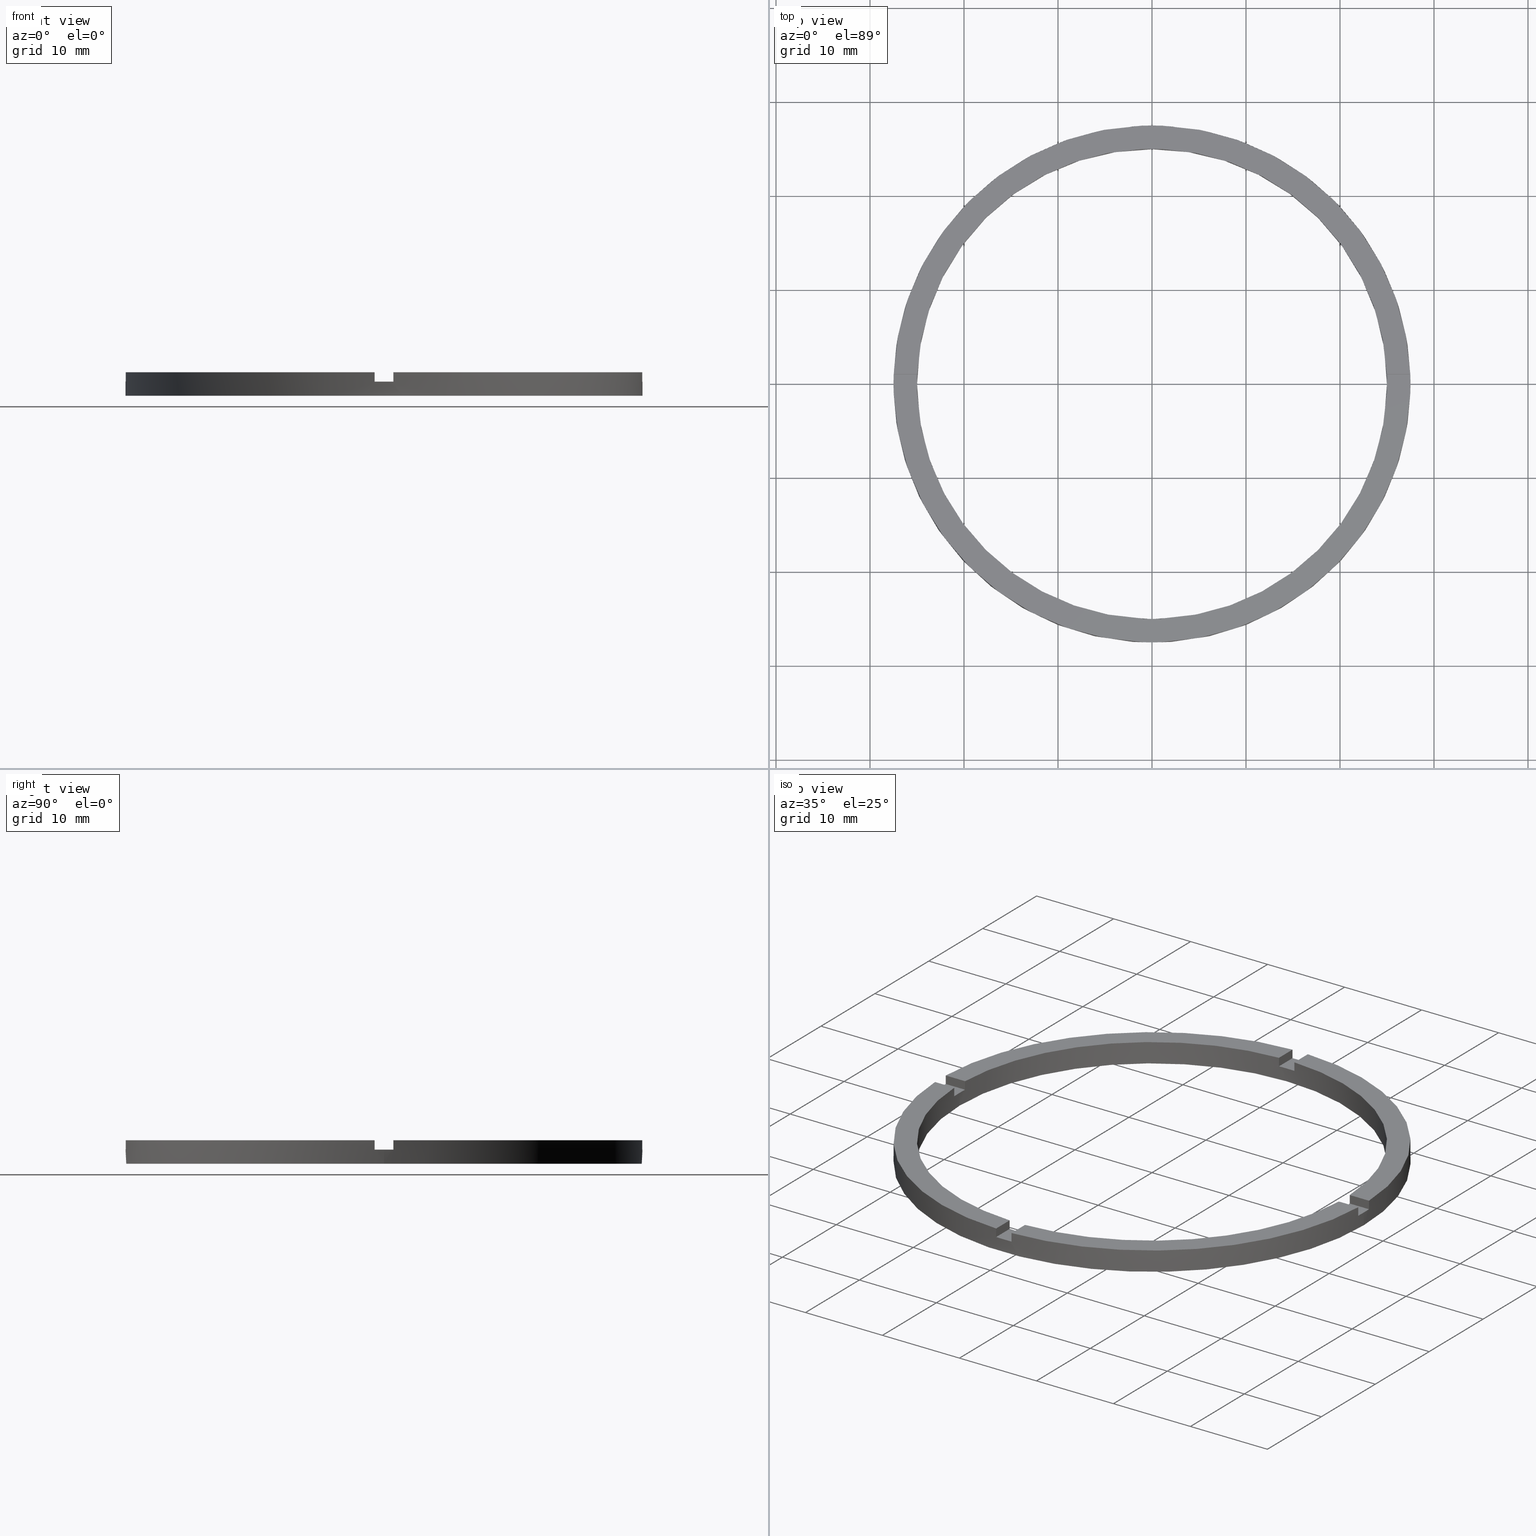
[diagram: canonical four-view strip — front | top / right | iso, engineering-drawing reading convention]
A machine part, canonical four-view strip (front | top / right | iso — engineering-drawing reading convention). The complete STEP part file that produces these views, byte-faithful:
ISO-10303-21;
HEADER;
FILE_DESCRIPTION (( 'STEP AP203' ),
    '1' );
FILE_NAME ('514114.step',
    '2024-12-26T02:38:51',
    ( 'MSI' ),
    ( '' ),
    'SwSTEP 2.0',
    'SolidWorks 2020',
    '' );
FILE_SCHEMA (( 'CONFIG_CONTROL_DESIGN' ));
ENDSEC;

DATA;
#1 = CARTESIAN_POINT ( 'NONE',  ( 0.9999999999998389066, -17.50000000000018119, 1.500000000000000000 ) ) ;
#2 = LINE ( 'NONE', #201, #272 ) ;
#3 = DIRECTION ( 'NONE',  ( 1.000000000000000000, 0.000000000000000000, 0.000000000000000000 ) ) ;
#4 = CYLINDRICAL_SURFACE ( 'NONE', #735, 27.50000000000000000 ) ;
#5 = LINE ( 'NONE', #133, #276 ) ;
#6 = EDGE_CURVE ( 'NONE', #117, #188, #278, .T. ) ;
#7 = LINE ( 'NONE', #370, #289 ) ;
#8 = CARTESIAN_POINT ( 'NONE',  ( -1.000000000000026423, 27.48181216732259102, 1.500000000000000000 ) ) ;
#9 = DIRECTION ( 'NONE',  ( 1.000000000000000000, 0.000000000000000000, 0.000000000000000000 ) ) ;
#10 = FACE_OUTER_BOUND ( 'NONE', #608, .T. ) ;
#11 = EDGE_CURVE ( 'NONE', #80, #614, #544, .T. ) ;
#12 = VECTOR ( 'NONE', #169, 1000.000000000000000 ) ;
#13 = CARTESIAN_POINT ( 'NONE',  ( 0.000000000000000000, 0.000000000000000000, 1.500000000000000000 ) ) ;
#14 = VECTOR ( 'NONE', #762, 1000.000000000000000 ) ;
#15 = LINE ( 'NONE', #671, #20 ) ;
#16 = LINE ( 'NONE', #481, #541 ) ;
#17 = EDGE_CURVE ( 'NONE', #655, #91, #530, .T. ) ;
#18 = FACE_OUTER_BOUND ( 'NONE', #447, .T. ) ;
#19 = EDGE_CURVE ( 'NONE', #359, #665, #283, .T. ) ;
#20 = VECTOR ( 'NONE', #718, 1000.000000000000000 ) ;
#21 = CARTESIAN_POINT ( 'NONE',  ( 0.000000000000000000, 0.000000000000000000, 0.000000000000000000 ) ) ;
#22 = FACE_OUTER_BOUND ( 'NONE', #265, .T. ) ;
#23 = FACE_OUTER_BOUND ( 'NONE', #639, .T. ) ;
#24 = LINE ( 'NONE', #145, #34 ) ;
#25 = AXIS2_PLACEMENT_3D ( 'NONE', #517, #288, #48 ) ;
#26 = LINE ( 'NONE', #185, #553 ) ;
#27 = DIRECTION ( 'NONE',  ( -1.301042606982605567E-16, 1.000000000000000000, 0.000000000000000000 ) ) ;
#28 = CIRCLE ( 'NONE', #460, 25.00000000000000000 ) ;
#29 = FACE_OUTER_BOUND ( 'NONE', #150, .T. ) ;
#30 = CIRCLE ( 'NONE', #533, 25.00000000000000000 ) ;
#31 = FACE_OUTER_BOUND ( 'NONE', #719, .T. ) ;
#32 = APPROVAL ( #539, 'δָ��' ) ;
#33 = CARTESIAN_POINT ( 'NONE',  ( -1.000000000000160316, -24.97999199359358968, 1.500000000000000000 ) ) ;
#34 = VECTOR ( 'NONE', #734, 1000.000000000000000 ) ;
#35 = DIRECTION ( 'NONE',  ( 1.000000000000000000, 1.734723475976807341E-16, -0.000000000000000000 ) ) ;
#36 = AXIS2_PLACEMENT_3D ( 'NONE', #65, #618, #9 ) ;
#37 = CARTESIAN_POINT ( 'NONE',  ( 0.9999999999999735767, 17.50000000000000000, 1.500000000000000000 ) ) ;
#38 = CARTESIAN_POINT ( 'NONE',  ( 0.000000000000000000, 0.000000000000000000, 2.500000000000000000 ) ) ;
#39 = APPLICATION_CONTEXT ( 'configuration controlled 3d designs of mechanical parts and assemblies' ) ;
#40 = EDGE_CURVE ( 'NONE', #783, #346, #15, .T. ) ;
#41 = CARTESIAN_POINT ( 'NONE',  ( 0.000000000000000000, 0.000000000000000000, 0.000000000000000000 ) ) ;
#42 = ADVANCED_FACE ( 'NONE', ( #18 ), #170, .T. ) ;
#43 = CARTESIAN_POINT ( 'NONE',  ( 0.000000000000000000, 0.000000000000000000, 1.500000000000000000 ) ) ;
#44 = AXIS2_PLACEMENT_3D ( 'NONE', #21, #736, #739 ) ;
#45 = DIRECTION ( 'NONE',  ( 0.000000000000000000, 0.000000000000000000, 1.000000000000000000 ) ) ;
#46 = DIRECTION ( 'NONE',  ( 0.000000000000000000, 0.000000000000000000, 1.000000000000000000 ) ) ;
#47 = CARTESIAN_POINT ( 'NONE',  ( 27.48181216732258392, -1.000000000000157208, 2.500000000000000000 ) ) ;
#48 = DIRECTION ( 'NONE',  ( 1.000000000000000000, 0.000000000000000000, -0.000000000000000000 ) ) ;
#49 = ADVANCED_FACE ( 'NONE', ( #284 ), #475, .F. ) ;
#50 = DIRECTION ( 'NONE',  ( 1.000000000000000000, 0.000000000000000000, 0.000000000000000000 ) ) ;
#51 = PLANE ( 'NONE',  #216 ) ;
#52 = DIRECTION ( 'NONE',  ( -1.301042606982605567E-16, 1.000000000000000000, -0.000000000000000000 ) ) ;
#53 = CARTESIAN_POINT ( 'NONE',  ( -1.000000000000026423, 27.48181216732259102, 2.500000000000000000 ) ) ;
#54 = DIRECTION ( 'NONE',  ( 1.000000000000000000, 1.734723475976807341E-16, 0.000000000000000000 ) ) ;
#55 = EDGE_CURVE ( 'NONE', #596, #158, #518, .T. ) ;
#56 = PERSON_AND_ORGANIZATION_ROLE ( 'creator' ) ;
#57 = EDGE_CURVE ( 'NONE', #654, #403, #773, .T. ) ;
#58 = DIRECTION ( 'NONE',  ( 0.000000000000000000, 0.000000000000000000, 1.000000000000000000 ) ) ;
#59 = DIRECTION ( 'NONE',  ( 1.000000000000000000, 0.000000000000000000, 0.000000000000000000 ) ) ;
#60 = CARTESIAN_POINT ( 'NONE',  ( -17.50000000000018474, -1.000000000000025091, 1.500000000000000000 ) ) ;
#61 = ORIENTED_EDGE ( 'NONE', *, *, #328, .F. ) ;
#62 = PRODUCT_DEFINITION ( 'δ֪', '', #457, #122 ) ;
#63 = DIRECTION ( 'NONE',  ( -0.000000000000000000, -0.000000000000000000, -1.000000000000000000 ) ) ;
#64 = DIRECTION ( 'NONE',  ( 1.000000000000000000, 1.734723475976807341E-16, -0.000000000000000000 ) ) ;
#65 = CARTESIAN_POINT ( 'NONE',  ( 0.000000000000000000, 0.000000000000000000, 2.500000000000000000 ) ) ;
#66 = DATE_AND_TIME ( #613, #336 ) ;
#67 = ORIENTED_EDGE ( 'NONE', *, *, #17, .F. ) ;
#68 = EDGE_CURVE ( 'NONE', #596, #601, #16, .T. ) ;
#69 = COORDINATED_UNIVERSAL_TIME_OFFSET ( 8, 0, .AHEAD. ) ;
#70 = ORIENTED_EDGE ( 'NONE', *, *, #754, .F. ) ;
#71 = PLANE ( 'NONE',  #570 ) ;
#72 = ORIENTED_EDGE ( 'NONE', *, *, #68, .F. ) ;
#73 = ORIENTED_EDGE ( 'NONE', *, *, #202, .T. ) ;
#74 = VERTEX_POINT ( 'NONE', #732 ) ;
#75 = CARTESIAN_POINT ( 'NONE',  ( 17.49999999999999645, -1.000000000000157430, 1.500000000000000000 ) ) ;
#76 = ORIENTED_EDGE ( 'NONE', *, *, #425, .F. ) ;
#77 = ORIENTED_EDGE ( 'NONE', *, *, #657, .T. ) ;
#78 = ORIENTED_EDGE ( 'NONE', *, *, #132, .F. ) ;
#79 = PERSON_AND_ORGANIZATION ( #693, #591 ) ;
#80 = VERTEX_POINT ( 'NONE', #53 ) ;
#81 = ORIENTED_EDGE ( 'NONE', *, *, #57, .T. ) ;
#82 = EDGE_LOOP ( 'NONE', ( #540, #630, #270, #111 ) ) ;
#83 = DIRECTION ( 'NONE',  ( 0.000000000000000000, 0.000000000000000000, 1.000000000000000000 ) ) ;
#84 = DIRECTION ( 'NONE',  ( 0.000000000000000000, 0.000000000000000000, 1.000000000000000000 ) ) ;
#85 = ORIENTED_EDGE ( 'NONE', *, *, #40, .F. ) ;
#86 = ORIENTED_EDGE ( 'NONE', *, *, #161, .T. ) ;
#87 = EDGE_CURVE ( 'NONE', #662, #606, #7, .T. ) ;
#88 = ORIENTED_EDGE ( 'NONE', *, *, #55, .T. ) ;
#89 = ORIENTED_EDGE ( 'NONE', *, *, #388, .T. ) ;
#90 = ORIENTED_EDGE ( 'NONE', *, *, #600, .T. ) ;
#91 = VERTEX_POINT ( 'NONE', #432 ) ;
#92 = ORIENTED_EDGE ( 'NONE', *, *, #307, .T. ) ;
#93 = EDGE_LOOP ( 'NONE', ( #98, #386, #193, #337, #97, #637, #85, #356, #110, #89, #73, #67 ) ) ;
#94 = EDGE_LOOP ( 'NONE', ( #454, #339 ) ) ;
#95 = CARTESIAN_POINT ( 'NONE',  ( 0.9999999999999735767, 27.48181216732259102, 2.500000000000000000 ) ) ;
#96 = CARTESIAN_POINT ( 'NONE',  ( -25.00000000000000000, 0.000000000000000000, 1.500000000000000000 ) ) ;
#97 = ORIENTED_EDGE ( 'NONE', *, *, #462, .F. ) ;
#98 = ORIENTED_EDGE ( 'NONE', *, *, #410, .F. ) ;
#99 = AXIS2_PLACEMENT_3D ( 'NONE', #37, #220, #285 ) ;
#100 = EDGE_LOOP ( 'NONE', ( #387, #380, #131, #151, #661, #531 ) ) ;
#101 = ORIENTED_EDGE ( 'NONE', *, *, #87, .F. ) ;
#102 = ORIENTED_EDGE ( 'NONE', *, *, #612, .T. ) ;
#103 = CARTESIAN_POINT ( 'NONE',  ( -1.000000000000026423, 17.50000000000000000, 1.500000000000000000 ) ) ;
#104 = VERTEX_POINT ( 'NONE', #203 ) ;
#105 = ORIENTED_EDGE ( 'NONE', *, *, #727, .T. ) ;
#106 = ORIENTED_EDGE ( 'NONE', *, *, #206, .F. ) ;
#107 = EDGE_LOOP ( 'NONE', ( #416, #148, #72, #644 ) ) ;
#108 = CC_DESIGN_DATE_AND_TIME_ASSIGNMENT ( #448, #357, ( #171 ) ) ;
#109 = VERTEX_POINT ( 'NONE', #123 ) ;
#110 = ORIENTED_EDGE ( 'NONE', *, *, #324, .F. ) ;
#111 = ORIENTED_EDGE ( 'NONE', *, *, #681, .F. ) ;
#112 = DIRECTION ( 'NONE',  ( -0.000000000000000000, -0.000000000000000000, -1.000000000000000000 ) ) ;
#113 = ORIENTED_EDGE ( 'NONE', *, *, #509, .F. ) ;
#114 = EDGE_CURVE ( 'NONE', #74, #669, #535, .T. ) ;
#115 = CARTESIAN_POINT ( 'NONE',  ( 0.000000000000000000, 0.000000000000000000, 2.500000000000000000 ) ) ;
#116 = ORIENTED_EDGE ( 'NONE', *, *, #87, .T. ) ;
#117 = VERTEX_POINT ( 'NONE', #542 ) ;
#118 = ORIENTED_EDGE ( 'NONE', *, *, #469, .F. ) ;
#119 = CARTESIAN_POINT ( 'NONE',  ( -1.000000000000160316, -24.97999199359358968, 2.500000000000000000 ) ) ;
#120 = ORIENTED_EDGE ( 'NONE', *, *, #114, .F. ) ;
#121 = VERTEX_POINT ( 'NONE', #8 ) ;
#122 = DESIGN_CONTEXT ( 'detailed design', #242, 'design' ) ;
#123 = CARTESIAN_POINT ( 'NONE',  ( -1.000000000000160094, -27.48181216732258392, 1.500000000000000000 ) ) ;
#124 = ORIENTED_EDGE ( 'NONE', *, *, #206, .T. ) ;
#125 = DIRECTION ( 'NONE',  ( 0.000000000000000000, 0.000000000000000000, 1.000000000000000000 ) ) ;
#126 = PRODUCT_RELATED_PRODUCT_CATEGORY ( 'detail', '', ( #422 ) ) ;
#127 = ORIENTED_EDGE ( 'NONE', *, *, #307, .F. ) ;
#128 = ADVANCED_FACE ( 'NONE', ( #522 ), #257, .F. ) ;
#129 = PERSON_AND_ORGANIZATION_ROLE ( 'design_owner' ) ;
#130 = ORIENTED_EDGE ( 'NONE', *, *, #778, .T. ) ;
#131 = ORIENTED_EDGE ( 'NONE', *, *, #295, .T. ) ;
#132 = EDGE_CURVE ( 'NONE', #109, #186, #776, .T. ) ;
#133 = CARTESIAN_POINT ( 'NONE',  ( -17.50000000000018474, 0.9999999999999749090, 2.500000000000000000 ) ) ;
#134 = ORIENTED_EDGE ( 'NONE', *, *, #177, .F. ) ;
#135 = CARTESIAN_POINT ( 'NONE',  ( 27.50000000000000000, 3.367778697655221307E-15, 0.000000000000000000 ) ) ;
#136 = ORIENTED_EDGE ( 'NONE', *, *, #625, .F. ) ;
#137 = ORIENTED_EDGE ( 'NONE', *, *, #462, .T. ) ;
#138 = PLANE ( 'NONE',  #342 ) ;
#139 = AXIS2_PLACEMENT_3D ( 'NONE', #43, #222, #347 ) ;
#140 = EDGE_CURVE ( 'NONE', #445, #104, #507, .T. ) ;
#141 = DIRECTION ( 'NONE',  ( 1.301042606982605567E-16, -1.000000000000000000, 0.000000000000000000 ) ) ;
#142 = AXIS2_PLACEMENT_3D ( 'NONE', #1, #482, #27 ) ;
#143 = DIRECTION ( 'NONE',  ( 1.000000000000000000, 0.000000000000000000, 0.000000000000000000 ) ) ;
#144 = VERTEX_POINT ( 'NONE', #680 ) ;
#145 = CARTESIAN_POINT ( 'NONE',  ( 17.49999999999999645, 0.9999999999998425704, 1.500000000000000000 ) ) ;
#146 = EDGE_CURVE ( 'NONE', #403, #654, #264, .T. ) ;
#147 = CARTESIAN_POINT ( 'NONE',  ( 0.000000000000000000, 0.000000000000000000, 2.500000000000000000 ) ) ;
#148 = ORIENTED_EDGE ( 'NONE', *, *, #227, .F. ) ;
#149 = ORIENTED_EDGE ( 'NONE', *, *, #11, .F. ) ;
#150 = EDGE_LOOP ( 'NONE', ( #527, #105, #382, #263 ) ) ;
#151 = ORIENTED_EDGE ( 'NONE', *, *, #582, .F. ) ;
#152 = AXIS2_PLACEMENT_3D ( 'NONE', #604, #196, #677 ) ;
#153 = CARTESIAN_POINT ( 'NONE',  ( -24.97999199359359679, 0.9999999999999735767, 2.500000000000000000 ) ) ;
#154 = ORIENTED_EDGE ( 'NONE', *, *, #690, .T. ) ;
#155 = DIRECTION ( 'NONE',  ( 0.000000000000000000, 0.000000000000000000, 1.000000000000000000 ) ) ;
#156 = PLANE ( 'NONE',  #212 ) ;
#157 = EDGE_CURVE ( 'NONE', #449, #614, #5, .T. ) ;
#158 = VERTEX_POINT ( 'NONE', #182 ) ;
#159 = DIRECTION ( 'NONE',  ( 0.000000000000000000, 0.000000000000000000, 1.000000000000000000 ) ) ;
#160 = CARTESIAN_POINT ( 'NONE',  ( 25.00000000000000000, 3.061616997868383043E-15, 0.000000000000000000 ) ) ;
#161 = EDGE_CURVE ( 'NONE', #391, #121, #519, .T. ) ;
#162 = ORIENTED_EDGE ( 'NONE', *, *, #670, .T. ) ;
#163 = ORIENTED_EDGE ( 'NONE', *, *, #657, .F. ) ;
#164 = DIRECTION ( 'NONE',  ( -0.000000000000000000, -1.000000000000000000, -0.000000000000000000 ) ) ;
#165 = EDGE_CURVE ( 'NONE', #596, #665, #515, .T. ) ;
#166 = AXIS2_PLACEMENT_3D ( 'NONE', #192, #394, #572 ) ;
#167 = DIRECTION ( 'NONE',  ( 0.000000000000000000, 0.000000000000000000, 1.000000000000000000 ) ) ;
#168 = ORIENTED_EDGE ( 'NONE', *, *, #703, .T. ) ;
#169 = DIRECTION ( 'NONE',  ( -0.000000000000000000, -0.000000000000000000, -1.000000000000000000 ) ) ;
#170 = PLANE ( 'NONE',  #187 ) ;
#171 = SECURITY_CLASSIFICATION ( '', '', #723 ) ;
#172 = PERSON_AND_ORGANIZATION_ROLE ( 'creator' ) ;
#173 = AXIS2_PLACEMENT_3D ( 'NONE', #592, #125, #3 ) ;
#174 = ADVANCED_FACE ( 'NONE', ( #780 ), #492, .F. ) ;
#175 = CARTESIAN_POINT ( 'NONE',  ( -17.50000000000018474, 0.9999999999999749090, 1.500000000000000000 ) ) ;
#176 = APPROVAL_DATE_TIME ( #715, #643 ) ;
#177 = EDGE_CURVE ( 'NONE', #91, #655, #277, .T. ) ;
#178 = MECHANICAL_CONTEXT ( 'NONE', #39, 'mechanical' ) ;
#179 = COORDINATED_UNIVERSAL_TIME_OFFSET ( 8, 0, .AHEAD. ) ;
#180 = CALENDAR_DATE ( 2024, 26, 12 ) ;
#181 = ADVANCED_FACE ( 'NONE', ( #271 ), #210, .T. ) ;
#182 = CARTESIAN_POINT ( 'NONE',  ( 27.48181216732259458, 0.9999999999998430145, 1.500000000000000000 ) ) ;
#183 = CALENDAR_DATE ( 2024, 26, 12 ) ;
#184 = ORIENTED_EDGE ( 'NONE', *, *, #328, .T. ) ;
#185 = CARTESIAN_POINT ( 'NONE',  ( 25.00000000000000000, 3.061616997868383043E-15, 2.500000000000000000 ) ) ;
#186 = VERTEX_POINT ( 'NONE', #664 ) ;
#187 = AXIS2_PLACEMENT_3D ( 'NONE', #232, #308, #350 ) ;
#188 = VERTEX_POINT ( 'NONE', #254 ) ;
#189 = DIRECTION ( 'NONE',  ( -0.000000000000000000, -0.000000000000000000, -1.000000000000000000 ) ) ;
#190 = DIRECTION ( 'NONE',  ( 1.000000000000000000, 0.000000000000000000, 0.000000000000000000 ) ) ;
#191 = LOCAL_TIME ( 10, 38, 51.00000000000000000, #444 ) ;
#192 = CARTESIAN_POINT ( 'NONE',  ( 0.000000000000000000, 0.000000000000000000, 2.500000000000000000 ) ) ;
#193 = ORIENTED_EDGE ( 'NONE', *, *, #764, .F. ) ;
#194 = ORIENTED_EDGE ( 'NONE', *, *, #472, .T. ) ;
#195 = ORIENTED_EDGE ( 'NONE', *, *, #241, .T. ) ;
#196 = DIRECTION ( 'NONE',  ( 0.000000000000000000, 0.000000000000000000, 1.000000000000000000 ) ) ;
#197 = APPROVAL_PERSON_ORGANIZATION ( #461, #643, #547 ) ;
#198 = PRODUCT_DEFINITION_SHAPE ( 'NONE', 'NONE',  #62 ) ;
#199 = APPROVAL_DATE_TIME ( #446, #32 ) ;
#200 = LOCAL_TIME ( 10, 38, 51.00000000000000000, #698 ) ;
#201 = CARTESIAN_POINT ( 'NONE',  ( -1.000000000000026423, 27.48181216732259102, 2.500000000000000000 ) ) ;
#202 = EDGE_CURVE ( 'NONE', #653, #91, #505, .T. ) ;
#203 = CARTESIAN_POINT ( 'NONE',  ( -27.48181216732259102, -1.000000000000026867, 1.500000000000000000 ) ) ;
#204 = COORDINATED_UNIVERSAL_TIME_OFFSET ( 8, 0, .AHEAD. ) ;
#205 = PLANE ( 'NONE',  #142 ) ;
#206 = EDGE_CURVE ( 'NONE', #669, #445, #770, .T. ) ;
#207 = DATE_AND_TIME ( #450, #191 ) ;
#208 = SHAPE_DEFINITION_REPRESENTATION ( #198, #726 ) ;
#209 = CARTESIAN_POINT ( 'NONE',  ( 17.49999999999999645, -1.000000000000157430, 2.500000000000000000 ) ) ;
#210 = PLANE ( 'NONE',  #396 ) ;
#211 = DIRECTION ( 'NONE',  ( 0.000000000000000000, 0.000000000000000000, 1.000000000000000000 ) ) ;
#212 = AXIS2_PLACEMENT_3D ( 'NONE', #281, #704, #471 ) ;
#213 = DIRECTION ( 'NONE',  ( -0.000000000000000000, -0.000000000000000000, -1.000000000000000000 ) ) ;
#214 = CARTESIAN_POINT ( 'NONE',  ( -17.50000000000018474, -1.000000000000025091, 1.500000000000000000 ) ) ;
#215 = CC_DESIGN_PERSON_AND_ORGANIZATION_ASSIGNMENT ( #724, #172, ( #457 ) ) ;
#216 = AXIS2_PLACEMENT_3D ( 'NONE', #60, #238, #54 ) ;
#217 = DIRECTION ( 'NONE',  ( -0.000000000000000000, -0.000000000000000000, -1.000000000000000000 ) ) ;
#218 = CARTESIAN_POINT ( 'NONE',  ( 0.000000000000000000, 0.000000000000000000, 2.500000000000000000 ) ) ;
#219 = EDGE_CURVE ( 'NONE', #669, #614, #258, .T. ) ;
#220 = DIRECTION ( 'NONE',  ( 1.000000000000000000, -0.000000000000000000, 0.000000000000000000 ) ) ;
#221 = ADVANCED_FACE ( 'NONE', ( #259 ), #4, .T. ) ;
#222 = DIRECTION ( 'NONE',  ( 0.000000000000000000, 0.000000000000000000, 1.000000000000000000 ) ) ;
#223 = CARTESIAN_POINT ( 'NONE',  ( 0.000000000000000000, 0.000000000000000000, 2.500000000000000000 ) ) ;
#224 = DIRECTION ( 'NONE',  ( 0.000000000000000000, 0.000000000000000000, 1.000000000000000000 ) ) ;
#225 = AXIS2_PLACEMENT_3D ( 'NONE', #558, #565, #551 ) ;
#226 = CARTESIAN_POINT ( 'NONE',  ( -27.50000000000000000, 0.000000000000000000, 0.000000000000000000 ) ) ;
#227 = EDGE_CURVE ( 'NONE', #601, #359, #523, .T. ) ;
#228 = VECTOR ( 'NONE', #112, 1000.000000000000000 ) ;
#229 = VECTOR ( 'NONE', #164, 1000.000000000000000 ) ;
#230 = FACE_BOUND ( 'NONE', #94, .T. ) ;
#231 = FACE_OUTER_BOUND ( 'NONE', #648, .T. ) ;
#232 = CARTESIAN_POINT ( 'NONE',  ( 0.000000000000000000, 0.000000000000000000, 1.500000000000000000 ) ) ;
#233 = VECTOR ( 'NONE', #341, 1000.000000000000000 ) ;
#234 = APPLICATION_PROTOCOL_DEFINITION ( 'international standard', 'config_control_design', 1994, #242 ) ;
#235 = LINE ( 'NONE', #280, #502 ) ;
#236 = VECTOR ( 'NONE', #52, 1000.000000000000000 ) ;
#237 = LINE ( 'NONE', #746, #228 ) ;
#238 = DIRECTION ( 'NONE',  ( 1.734723475976807341E-16, -1.000000000000000000, 0.000000000000000000 ) ) ;
#239 = ADVANCED_FACE ( 'NONE', ( #10 ), #463, .T. ) ;
#240 = LINE ( 'NONE', #508, #759 ) ;
#241 = EDGE_CURVE ( 'NONE', #623, #186, #782, .T. ) ;
#242 = APPLICATION_CONTEXT ( 'configuration controlled 3d designs of mechanical parts and assemblies' ) ;
#243 = FACE_OUTER_BOUND ( 'NONE', #100, .T. ) ;
#244 = DIRECTION ( 'NONE',  ( 1.000000000000000000, 4.336808689942018352E-17, 0.000000000000000000 ) ) ;
#245 = DIRECTION ( 'NONE',  ( -0.000000000000000000, -0.000000000000000000, -1.000000000000000000 ) ) ;
#246 = VECTOR ( 'NONE', #712, 1000.000000000000000 ) ;
#247 = CC_DESIGN_PERSON_AND_ORGANIZATION_ASSIGNMENT ( #701, #594, ( #171 ) ) ;
#248 = VECTOR ( 'NONE', #297, 1000.000000000000000 ) ;
#249 = DIRECTION ( 'NONE',  ( 1.000000000000000000, 0.000000000000000000, 0.000000000000000000 ) ) ;
#250 = DIRECTION ( 'NONE',  ( 1.000000000000000000, 0.000000000000000000, 0.000000000000000000 ) ) ;
#251 = VECTOR ( 'NONE', #569, 1000.000000000000000 ) ;
#252 = FACE_OUTER_BOUND ( 'NONE', #360, .T. ) ;
#253 = LINE ( 'NONE', #590, #484 ) ;
#254 = CARTESIAN_POINT ( 'NONE',  ( 25.00000000000000000, 3.061616997868383043E-15, 1.500000000000000000 ) ) ;
#255 = LINE ( 'NONE', #418, #233 ) ;
#256 = CARTESIAN_POINT ( 'NONE',  ( 0.000000000000000000, 0.000000000000000000, 1.500000000000000000 ) ) ;
#257 = CYLINDRICAL_SURFACE ( 'NONE', #574, 25.00000000000000000 ) ;
#258 = LINE ( 'NONE', #564, #14 ) ;
#259 = FACE_OUTER_BOUND ( 'NONE', #345, .T. ) ;
#260 = VERTEX_POINT ( 'NONE', #555 ) ;
#261 = CARTESIAN_POINT ( 'NONE',  ( 0.000000000000000000, 0.000000000000000000, 2.500000000000000000 ) ) ;
#262 = CARTESIAN_POINT ( 'NONE',  ( -1.000000000000161204, -17.50000000000018119, 1.500000000000000000 ) ) ;
#263 = ORIENTED_EDGE ( 'NONE', *, *, #241, .F. ) ;
#264 = CIRCLE ( 'NONE', #692, 27.50000000000000000 ) ;
#265 = EDGE_LOOP ( 'NONE', ( #124, #621, #395, #163, #646, #510 ) ) ;
#266 = CARTESIAN_POINT ( 'NONE',  ( 0.000000000000000000, 0.000000000000000000, 2.500000000000000000 ) ) ;
#267 = CARTESIAN_POINT ( 'NONE',  ( 0.000000000000000000, 0.000000000000000000, 2.500000000000000000 ) ) ;
#268 = PLANE ( 'NONE',  #686 ) ;
#269 = EDGE_CURVE ( 'NONE', #80, #121, #2, .T. ) ;
#270 = ORIENTED_EDGE ( 'NONE', *, *, #583, .T. ) ;
#271 = FACE_OUTER_BOUND ( 'NONE', #619, .T. ) ;
#272 = VECTOR ( 'NONE', #392, 1000.000000000000000 ) ;
#273 = VECTOR ( 'NONE', #568, 1000.000000000000000 ) ;
#274 = DIRECTION ( 'NONE',  ( -0.000000000000000000, -0.000000000000000000, -1.000000000000000000 ) ) ;
#275 =( NAMED_UNIT ( * ) SI_UNIT ( $, .STERADIAN. ) SOLID_ANGLE_UNIT ( ) );
#276 = VECTOR ( 'NONE', #687, 1000.000000000000000 ) ;
#277 = CIRCLE ( 'NONE', #44, 25.00000000000000000 ) ;
#278 = CIRCLE ( 'NONE', #436, 25.00000000000000000 ) ;
#279 = EDGE_CURVE ( 'NONE', #144, #368, #524, .T. ) ;
#280 = CARTESIAN_POINT ( 'NONE',  ( -1.000000000000160316, -24.97999199359358968, 2.500000000000000000 ) ) ;
#281 = CARTESIAN_POINT ( 'NONE',  ( 0.000000000000000000, 0.000000000000000000, 1.500000000000000000 ) ) ;
#282 = CYLINDRICAL_SURFACE ( 'NONE', #772, 25.00000000000000000 ) ;
#283 = LINE ( 'NONE', #292, #537 ) ;
#284 = FACE_OUTER_BOUND ( 'NONE', #679, .T. ) ;
#285 = DIRECTION ( 'NONE',  ( 0.000000000000000000, 0.000000000000000000, -1.000000000000000000 ) ) ;
#286 = AXIS2_PLACEMENT_3D ( 'NONE', #658, #401, #250 ) ;
#287 = VECTOR ( 'NONE', #189, 1000.000000000000000 ) ;
#288 = DIRECTION ( 'NONE',  ( 0.000000000000000000, 0.000000000000000000, 1.000000000000000000 ) ) ;
#289 = VECTOR ( 'NONE', #64, 1000.000000000000000 ) ;
#290 = DIRECTION ( 'NONE',  ( -1.000000000000000000, 0.000000000000000000, 0.000000000000000000 ) ) ;
#291 = VECTOR ( 'NONE', #274, 1000.000000000000000 ) ;
#292 = CARTESIAN_POINT ( 'NONE',  ( 0.9999999999999735767, 17.50000000000000000, 2.500000000000000000 ) ) ;
#293 = ADVANCED_FACE ( 'NONE', ( #534 ), #282, .F. ) ;
#294 = CIRCLE ( 'NONE', #485, 25.00000000000000000 ) ;
#295 = EDGE_CURVE ( 'NONE', #158, #629, #24, .T. ) ;
#296 = CIRCLE ( 'NONE', #286, 27.50000000000000000 ) ;
#297 = DIRECTION ( 'NONE',  ( 0.000000000000000000, 0.000000000000000000, 1.000000000000000000 ) ) ;
#298 = VECTOR ( 'NONE', #559, 1000.000000000000000 ) ;
#299 = LINE ( 'NONE', #311, #309 ) ;
#300 = DIRECTION ( 'NONE',  ( 0.000000000000000000, 0.000000000000000000, 1.000000000000000000 ) ) ;
#301 = CIRCLE ( 'NONE', #36, 25.00000000000000000 ) ;
#302 = AXIS2_PLACEMENT_3D ( 'NONE', #609, #321, #440 ) ;
#303 = CIRCLE ( 'NONE', #173, 27.50000000000000000 ) ;
#304 =( LENGTH_UNIT ( ) NAMED_UNIT ( * ) SI_UNIT ( .MILLI., .METRE. ) );
#305 = VECTOR ( 'NONE', #213, 1000.000000000000000 ) ;
#306 = LINE ( 'NONE', #610, #291 ) ;
#307 = EDGE_CURVE ( 'NONE', #611, #710, #294, .T. ) ;
#308 = DIRECTION ( 'NONE',  ( -0.000000000000000000, 0.000000000000000000, 1.000000000000000000 ) ) ;
#309 = VECTOR ( 'NONE', #167, 1000.000000000000000 ) ;
#310 = PERSON_AND_ORGANIZATION_ROLE ( 'design_supplier' ) ;
#311 = CARTESIAN_POINT ( 'NONE',  ( -24.97999199359359679, 0.9999999999999735767, 2.500000000000000000 ) ) ;
#312 = APPROVAL_STATUS ( 'not_yet_approved' ) ;
#313 = ADVANCED_FACE ( 'NONE', ( #552 ), #51, .F. ) ;
#314 = DIRECTION ( 'NONE',  ( 4.336808689942018352E-17, -1.000000000000000000, 0.000000000000000000 ) ) ;
#315 = DIRECTION ( 'NONE',  ( -0.000000000000000000, -0.000000000000000000, -1.000000000000000000 ) ) ;
#316 = AXIS2_PLACEMENT_3D ( 'NONE', #435, #737, #317 ) ;
#317 = DIRECTION ( 'NONE',  ( 1.000000000000000000, 0.000000000000000000, 0.000000000000000000 ) ) ;
#318 = EDGE_CURVE ( 'NONE', #623, #354, #546, .T. ) ;
#319 = CARTESIAN_POINT ( 'NONE',  ( 0.000000000000000000, 0.000000000000000000, 1.500000000000000000 ) ) ;
#320 = CC_DESIGN_APPROVAL ( #348, ( #62 ) ) ;
#321 = DIRECTION ( 'NONE',  ( 0.000000000000000000, 0.000000000000000000, 1.000000000000000000 ) ) ;
#322 = AXIS2_PLACEMENT_3D ( 'NONE', #115, #335, #50 ) ;
#323 = CARTESIAN_POINT ( 'NONE',  ( 0.000000000000000000, 0.000000000000000000, 1.500000000000000000 ) ) ;
#324 = EDGE_CURVE ( 'NONE', #74, #449, #299, .T. ) ;
#325 = DIRECTION ( 'NONE',  ( -1.000000000000000000, -4.336808689942017120E-17, 0.000000000000000000 ) ) ;
#326 = AXIS2_PLACEMENT_3D ( 'NONE', #777, #58, #428 ) ;
#327 = PLANE ( 'NONE',  #520 ) ;
#328 = EDGE_CURVE ( 'NONE', #662, #452, #303, .T. ) ;
#329 = CARTESIAN_POINT ( 'NONE',  ( -27.48181216732259102, 0.9999999999999731326, 2.500000000000000000 ) ) ;
#330 = CARTESIAN_POINT ( 'NONE',  ( -1.000000000000026423, 24.97999199359359679, 2.500000000000000000 ) ) ;
#331 = CARTESIAN_POINT ( 'NONE',  ( 0.000000000000000000, 0.000000000000000000, 2.500000000000000000 ) ) ;
#332 = PERSON_AND_ORGANIZATION ( #693, #591 ) ;
#333 = DIRECTION ( 'NONE',  ( -0.000000000000000000, -1.000000000000000000, -0.000000000000000000 ) ) ;
#334 = ORIENTED_EDGE ( 'NONE', *, *, #11, .T. ) ;
#335 = DIRECTION ( 'NONE',  ( 0.000000000000000000, 0.000000000000000000, 1.000000000000000000 ) ) ;
#336 = LOCAL_TIME ( 10, 38, 51.00000000000000000, #69 ) ;
#337 = ORIENTED_EDGE ( 'NONE', *, *, #227, .T. ) ;
#338 = ORIENTED_EDGE ( 'NONE', *, *, #146, .T. ) ;
#339 = ORIENTED_EDGE ( 'NONE', *, *, #17, .T. ) ;
#340 = ORIENTED_EDGE ( 'NONE', *, *, #279, .F. ) ;
#341 = DIRECTION ( 'NONE',  ( 0.000000000000000000, 1.000000000000000000, 0.000000000000000000 ) ) ;
#342 = AXIS2_PLACEMENT_3D ( 'NONE', #486, #437, #325 ) ;
#343 = ORIENTED_EDGE ( 'NONE', *, *, #600, .F. ) ;
#344 = CARTESIAN_POINT ( 'NONE',  ( 0.9999999999998400169, -27.48181216732259458, 2.500000000000000000 ) ) ;
#345 = EDGE_LOOP ( 'NONE', ( #673, #102, #338, #624, #106, #378, #149, #602, #616, #90, #374, #88 ) ) ;
#346 = VERTEX_POINT ( 'NONE', #521 ) ;
#347 = DIRECTION ( 'NONE',  ( 1.000000000000000000, 0.000000000000000000, 0.000000000000000000 ) ) ;
#348 = APPROVAL ( #312, 'δָ��' ) ;
#349 = ORIENTED_EDGE ( 'NONE', *, *, #417, .T. ) ;
#350 = DIRECTION ( 'NONE',  ( 1.000000000000000000, 0.000000000000000000, 0.000000000000000000 ) ) ;
#351 = ORIENTED_EDGE ( 'NONE', *, *, #731, .T. ) ;
#352 = ORIENTED_EDGE ( 'NONE', *, *, #269, .F. ) ;
#353 = AXIS2_PLACEMENT_3D ( 'NONE', #756, #376, #479 ) ;
#354 = VERTEX_POINT ( 'NONE', #415 ) ;
#355 = EDGE_LOOP ( 'NONE', ( #116, #408, #605, #70 ) ) ;
#356 = ORIENTED_EDGE ( 'NONE', *, *, #586, .T. ) ;
#357 = DATE_TIME_ROLE ( 'classification_date' ) ;
#358 = ORIENTED_EDGE ( 'NONE', *, *, #567, .F. ) ;
#359 = VERTEX_POINT ( 'NONE', #464 ) ;
#360 = EDGE_LOOP ( 'NONE', ( #708, #620 ) ) ;
#361 = ORIENTED_EDGE ( 'NONE', *, *, #681, .T. ) ;
#362 = EDGE_CURVE ( 'NONE', #363, #369, #562, .T. ) ;
#363 = VERTEX_POINT ( 'NONE', #429 ) ;
#364 = DIRECTION ( 'NONE',  ( 1.000000000000000000, 0.000000000000000000, 0.000000000000000000 ) ) ;
#365 = ORIENTED_EDGE ( 'NONE', *, *, #731, .F. ) ;
#366 = APPROVAL_ROLE ( '' ) ;
#367 = ORIENTED_EDGE ( 'NONE', *, *, #676, .F. ) ;
#368 = VERTEX_POINT ( 'NONE', #47 ) ;
#369 = VERTEX_POINT ( 'NONE', #473 ) ;
#370 = CARTESIAN_POINT ( 'NONE',  ( -17.50000000000018474, -1.000000000000025091, 2.500000000000000000 ) ) ;
#371 = AXIS2_PLACEMENT_3D ( 'NONE', #633, #571, #626 ) ;
#372 = CARTESIAN_POINT ( 'NONE',  ( 0.000000000000000000, 0.000000000000000000, 1.500000000000000000 ) ) ;
#373 = ORIENTED_EDGE ( 'NONE', *, *, #362, .F. ) ;
#374 = ORIENTED_EDGE ( 'NONE', *, *, #165, .F. ) ;
#375 = ORIENTED_EDGE ( 'NONE', *, *, #417, .F. ) ;
#376 = DIRECTION ( 'NONE',  ( 0.000000000000000000, -0.000000000000000000, 1.000000000000000000 ) ) ;
#377 = CARTESIAN_POINT ( 'NONE',  ( 17.49999999999999645, -1.000000000000157430, 1.500000000000000000 ) ) ;
#378 = ORIENTED_EDGE ( 'NONE', *, *, #219, .T. ) ;
#379 = CARTESIAN_POINT ( 'NONE',  ( -1.000000000000161204, -17.50000000000018119, 2.500000000000000000 ) ) ;
#380 = ORIENTED_EDGE ( 'NONE', *, *, #538, .T. ) ;
#381 = ORIENTED_EDGE ( 'NONE', *, *, #410, .T. ) ;
#382 = ORIENTED_EDGE ( 'NONE', *, *, #690, .F. ) ;
#383 = DIRECTION ( 'NONE',  ( 1.000000000000000000, 0.000000000000000000, 0.000000000000000000 ) ) ;
#384 = ORIENTED_EDGE ( 'NONE', *, *, #670, .F. ) ;
#385 = DIRECTION ( 'NONE',  ( 0.000000000000000000, 0.000000000000000000, 1.000000000000000000 ) ) ;
#386 = ORIENTED_EDGE ( 'NONE', *, *, #582, .T. ) ;
#387 = ORIENTED_EDGE ( 'NONE', *, *, #362, .T. ) ;
#388 = EDGE_CURVE ( 'NONE', #74, #653, #28, .T. ) ;
#389 = EDGE_LOOP ( 'NONE', ( #628, #390, #663, #649 ) ) ;
#390 = ORIENTED_EDGE ( 'NONE', *, *, #764, .T. ) ;
#391 = VERTEX_POINT ( 'NONE', #781 ) ;
#392 = DIRECTION ( 'NONE',  ( -0.000000000000000000, -0.000000000000000000, -1.000000000000000000 ) ) ;
#393 = ORIENTED_EDGE ( 'NONE', *, *, #676, .T. ) ;
#394 = DIRECTION ( 'NONE',  ( 0.000000000000000000, 0.000000000000000000, 1.000000000000000000 ) ) ;
#395 = ORIENTED_EDGE ( 'NONE', *, *, #722, .T. ) ;
#396 = AXIS2_PLACEMENT_3D ( 'NONE', #267, #45, #549 ) ;
#397 = ORIENTED_EDGE ( 'NONE', *, *, #443, .F. ) ;
#398 = ORIENTED_EDGE ( 'NONE', *, *, #324, .T. ) ;
#399 = AXIS2_PLACEMENT_3D ( 'NONE', #323, #733, #59 ) ;
#400 = ORIENTED_EDGE ( 'NONE', *, *, #219, .F. ) ;
#401 = DIRECTION ( 'NONE',  ( 0.000000000000000000, 0.000000000000000000, 1.000000000000000000 ) ) ;
#402 = ORIENTED_EDGE ( 'NONE', *, *, #469, .T. ) ;
#403 = VERTEX_POINT ( 'NONE', #135 ) ;
#404 = CC_DESIGN_PERSON_AND_ORGANIZATION_ASSIGNMENT ( #79, #129, ( #422 ) ) ;
#405 = ORIENTED_EDGE ( 'NONE', *, *, #157, .T. ) ;
#406 = DIRECTION ( 'NONE',  ( 1.301042606982605567E-16, -1.000000000000000000, 0.000000000000000000 ) ) ;
#407 = CARTESIAN_POINT ( 'NONE',  ( 0.000000000000000000, 0.000000000000000000, 0.000000000000000000 ) ) ;
#408 = ORIENTED_EDGE ( 'NONE', *, *, #509, .T. ) ;
#409 = CARTESIAN_POINT ( 'NONE',  ( -24.97999199359359679, -1.000000000000026423, 1.500000000000000000 ) ) ;
#410 = EDGE_CURVE ( 'NONE', #188, #655, #26, .T. ) ;
#411 = DIRECTION ( 'NONE',  ( 1.000000000000000000, 0.000000000000000000, 0.000000000000000000 ) ) ;
#412 = ORIENTED_EDGE ( 'NONE', *, *, #318, .F. ) ;
#413 = CARTESIAN_POINT ( 'NONE',  ( -27.48181216732259102, 0.9999999999999731326, 1.500000000000000000 ) ) ;
#414 = ADVANCED_FACE ( 'NONE', ( #31 ), #647, .F. ) ;
#415 = CARTESIAN_POINT ( 'NONE',  ( 0.9999999999998397948, -24.97999199359360034, 2.500000000000000000 ) ) ;
#416 = ORIENTED_EDGE ( 'NONE', *, *, #19, .F. ) ;
#417 = EDGE_CURVE ( 'NONE', #606, #711, #30, .T. ) ;
#418 = CARTESIAN_POINT ( 'NONE',  ( 0.9999999999999735767, 17.50000000000000000, 1.500000000000000000 ) ) ;
#419 = ORIENTED_EDGE ( 'NONE', *, *, #425, .T. ) ;
#420 = CARTESIAN_POINT ( 'NONE',  ( -25.00000000000000000, 0.000000000000000000, 2.500000000000000000 ) ) ;
#421 = ADVANCED_FACE ( 'NONE', ( #23 ), #514, .F. ) ;
#422 = PRODUCT ( '514114', '514114', '', ( #178 ) ) ;
#423 =( NAMED_UNIT ( * ) PLANE_ANGLE_UNIT ( ) SI_UNIT ( $, .RADIAN. ) );
#424 = CARTESIAN_POINT ( 'NONE',  ( 0.000000000000000000, 0.000000000000000000, 2.500000000000000000 ) ) ;
#425 = EDGE_CURVE ( 'NONE', #623, #368, #296, .T. ) ;
#426 = EDGE_LOOP ( 'NONE', ( #384, #334, #587, #635 ) ) ;
#427 = APPROVAL_ROLE ( '' ) ;
#428 = DIRECTION ( 'NONE',  ( 1.000000000000000000, 0.000000000000000000, 0.000000000000000000 ) ) ;
#429 = CARTESIAN_POINT ( 'NONE',  ( 27.48181216732258392, -1.000000000000157208, 1.500000000000000000 ) ) ;
#430 = AXIS2_PLACEMENT_3D ( 'NONE', #372, #758, #364 ) ;
#431 = DATE_TIME_ROLE ( 'creation_date' ) ;
#432 = CARTESIAN_POINT ( 'NONE',  ( -25.00000000000000000, 0.000000000000000000, 0.000000000000000000 ) ) ;
#433 = ORIENTED_EDGE ( 'NONE', *, *, #279, .T. ) ;
#434 = DIRECTION ( 'NONE',  ( -1.000000000000000000, -4.336808689942017120E-17, -0.000000000000000000 ) ) ;
#435 = CARTESIAN_POINT ( 'NONE',  ( 0.000000000000000000, 0.000000000000000000, 1.500000000000000000 ) ) ;
#436 = AXIS2_PLACEMENT_3D ( 'NONE', #512, #300, #757 ) ;
#437 = DIRECTION ( 'NONE',  ( -4.336808689942017120E-17, 1.000000000000000000, 0.000000000000000000 ) ) ;
#438 = LOCAL_TIME ( 10, 38, 51.00000000000000000, #204 ) ;
#439 = LOCAL_TIME ( 10, 38, 51.00000000000000000, #179 ) ;
#440 = DIRECTION ( 'NONE',  ( 1.000000000000000000, 0.000000000000000000, 0.000000000000000000 ) ) ;
#441 = CARTESIAN_POINT ( 'NONE',  ( -27.50000000000000000, 0.000000000000000000, 1.500000000000000000 ) ) ;
#442 = PERSON_AND_ORGANIZATION ( #693, #591 ) ;
#443 = EDGE_CURVE ( 'NONE', #117, #363, #548, .T. ) ;
#444 = COORDINATED_UNIVERSAL_TIME_OFFSET ( 8, 0, .AHEAD. ) ;
#445 = VERTEX_POINT ( 'NONE', #441 ) ;
#446 = DATE_AND_TIME ( #706, #200 ) ;
#447 = EDGE_LOOP ( 'NONE', ( #660, #154, #127, #168 ) ) ;
#448 = DATE_AND_TIME ( #183, #439 ) ;
#449 = VERTEX_POINT ( 'NONE', #153 ) ;
#450 = CALENDAR_DATE ( 2024, 26, 12 ) ;
#451 = ORIENTED_EDGE ( 'NONE', *, *, #511, .F. ) ;
#452 = VERTEX_POINT ( 'NONE', #694 ) ;
#453 = AXIS2_PLACEMENT_3D ( 'NONE', #407, #700, #753 ) ;
#454 = ORIENTED_EDGE ( 'NONE', *, *, #177, .T. ) ;
#455 = DIRECTION ( 'NONE',  ( 1.000000000000000000, 0.000000000000000000, -0.000000000000000000 ) ) ;
#456 = PLANE ( 'NONE',  #25 ) ;
#457 = PRODUCT_DEFINITION_FORMATION_WITH_SPECIFIED_SOURCE ( '�κ�', '', #422, .NOT_KNOWN. ) ;
#458 = CARTESIAN_POINT ( 'NONE',  ( 24.97999199359360034, 0.9999999999998430145, 1.500000000000000000 ) ) ;
#459 = DIRECTION ( 'NONE',  ( 1.000000000000000000, 0.000000000000000000, -0.000000000000000000 ) ) ;
#460 = AXIS2_PLACEMENT_3D ( 'NONE', #543, #598, #678 ) ;
#461 = PERSON_AND_ORGANIZATION ( #693, #591 ) ;
#462 = EDGE_CURVE ( 'NONE', #260, #359, #550, .T. ) ;
#463 = PLANE ( 'NONE',  #353 ) ;
#464 = CARTESIAN_POINT ( 'NONE',  ( 0.9999999999999735767, 24.97999199359359679, 2.500000000000000000 ) ) ;
#465 = ADVANCED_FACE ( 'NONE', ( #22 ), #268, .T. ) ;
#466 = DIRECTION ( 'NONE',  ( -1.000000000000000000, 0.000000000000000000, 0.000000000000000000 ) ) ;
#467 = AXIS2_PLACEMENT_3D ( 'NONE', #377, #314, #244 ) ;
#468 = DIRECTION ( 'NONE',  ( 1.000000000000000000, 0.000000000000000000, 0.000000000000000000 ) ) ;
#469 = EDGE_CURVE ( 'NONE', #354, #144, #301, .T. ) ;
#470 = ADVANCED_FACE ( 'NONE', ( #29 ), #205, .F. ) ;
#471 = DIRECTION ( 'NONE',  ( 1.000000000000000000, 0.000000000000000000, -0.000000000000000000 ) ) ;
#472 = EDGE_CURVE ( 'NONE', #445, #654, #306, .T. ) ;
#473 = CARTESIAN_POINT ( 'NONE',  ( 27.50000000000000000, 3.367778697655221307E-15, 1.500000000000000000 ) ) ;
#474 = APPROVAL_STATUS ( 'not_yet_approved' ) ;
#475 = PLANE ( 'NONE',  #467 ) ;
#476 = LINE ( 'NONE', #581, #246 ) ;
#477 = AXIS2_PLACEMENT_3D ( 'NONE', #38, #83, #695 ) ;
#478 = LINE ( 'NONE', #720, #498 ) ;
#479 = DIRECTION ( 'NONE',  ( 1.000000000000000000, 0.000000000000000000, -0.000000000000000000 ) ) ;
#480 = CIRCLE ( 'NONE', #399, 27.50000000000000000 ) ;
#481 = CARTESIAN_POINT ( 'NONE',  ( 17.49999999999999645, 0.9999999999998425704, 2.500000000000000000 ) ) ;
#482 = DIRECTION ( 'NONE',  ( 1.000000000000000000, 1.301042606982605567E-16, 0.000000000000000000 ) ) ;
#483 = CC_DESIGN_SECURITY_CLASSIFICATION ( #171, ( #457 ) ) ;
#484 = VECTOR ( 'NONE', #333, 1000.000000000000000 ) ;
#485 = AXIS2_PLACEMENT_3D ( 'NONE', #13, #529, #589 ) ;
#486 = CARTESIAN_POINT ( 'NONE',  ( 17.49999999999999645, 0.9999999999998425704, 1.500000000000000000 ) ) ;
#487 = CIRCLE ( 'NONE', #477, 25.00000000000000000 ) ;
#488 = FACE_OUTER_BOUND ( 'NONE', #82, .T. ) ;
#489 = CYLINDRICAL_SURFACE ( 'NONE', #636, 27.50000000000000000 ) ;
#490 = DIRECTION ( 'NONE',  ( -0.000000000000000000, -0.000000000000000000, -1.000000000000000000 ) ) ;
#491 = LINE ( 'NONE', #214, #740 ) ;
#492 = PLANE ( 'NONE',  #371 ) ;
#493 = CARTESIAN_POINT ( 'NONE',  ( 24.97999199359358968, -1.000000000000157208, 2.500000000000000000 ) ) ;
#494 = LINE ( 'NONE', #493, #251 ) ;
#495 = CARTESIAN_POINT ( 'NONE',  ( 0.000000000000000000, 0.000000000000000000, 1.500000000000000000 ) ) ;
#496 = LINE ( 'NONE', #103, #229 ) ;
#497 = VECTOR ( 'NONE', #652, 1000.000000000000000 ) ;
#498 = VECTOR ( 'NONE', #767, 1000.000000000000000 ) ;
#499 = FACE_OUTER_BOUND ( 'NONE', #389, .T. ) ;
#500 = CARTESIAN_POINT ( 'NONE',  ( -24.97999199359359679, -1.000000000000026423, 2.500000000000000000 ) ) ;
#501 = FACE_OUTER_BOUND ( 'NONE', #689, .T. ) ;
#502 = VECTOR ( 'NONE', #155, 1000.000000000000000 ) ;
#503 = LINE ( 'NONE', #532, #236 ) ;
#504 = DIRECTION ( 'NONE',  ( 0.000000000000000000, 0.000000000000000000, 1.000000000000000000 ) ) ;
#505 = LINE ( 'NONE', #420, #769 ) ;
#506 = DIRECTION ( 'NONE',  ( -0.000000000000000000, -0.000000000000000000, -1.000000000000000000 ) ) ;
#507 = CIRCLE ( 'NONE', #152, 27.50000000000000000 ) ;
#508 = CARTESIAN_POINT ( 'NONE',  ( -27.48181216732259102, -1.000000000000026867, 2.500000000000000000 ) ) ;
#509 = EDGE_CURVE ( 'NONE', #606, #615, #557, .T. ) ;
#510 = ORIENTED_EDGE ( 'NONE', *, *, #114, .T. ) ;
#511 = EDGE_CURVE ( 'NONE', #260, #346, #560, .T. ) ;
#512 = CARTESIAN_POINT ( 'NONE',  ( 0.000000000000000000, 0.000000000000000000, 1.500000000000000000 ) ) ;
#513 = VECTOR ( 'NONE', #674, 1000.000000000000000 ) ;
#514 = PLANE ( 'NONE',  #650 ) ;
#515 = CIRCLE ( 'NONE', #302, 27.50000000000000000 ) ;
#516 = ADVANCED_FACE ( 'NONE', ( #499 ), #138, .F. ) ;
#517 = CARTESIAN_POINT ( 'NONE',  ( 0.000000000000000000, 0.000000000000000000, 0.000000000000000000 ) ) ;
#518 = LINE ( 'NONE', #603, #287 ) ;
#519 = CIRCLE ( 'NONE', #607, 27.50000000000000000 ) ;
#520 = AXIS2_PLACEMENT_3D ( 'NONE', #262, #729, #406 ) ;
#521 = CARTESIAN_POINT ( 'NONE',  ( -1.000000000000026423, 24.97999199359359679, 1.500000000000000000 ) ) ;
#522 = FACE_OUTER_BOUND ( 'NONE', #638, .T. ) ;
#523 = CIRCLE ( 'NONE', #322, 25.00000000000000000 ) ;
#524 = LINE ( 'NONE', #209, #273 ) ;
#525 = ADVANCED_FACE ( 'NONE', ( #488 ), #327, .F. ) ;
#526 = DIRECTION ( 'NONE',  ( 0.000000000000000000, 1.000000000000000000, 0.000000000000000000 ) ) ;
#527 = ORIENTED_EDGE ( 'NONE', *, *, #318, .T. ) ;
#528 = CC_DESIGN_DATE_AND_TIME_ASSIGNMENT ( #207, #431, ( #62 ) ) ;
#529 = DIRECTION ( 'NONE',  ( -0.000000000000000000, 0.000000000000000000, 1.000000000000000000 ) ) ;
#530 = CIRCLE ( 'NONE', #742, 25.00000000000000000 ) ;
#531 = ORIENTED_EDGE ( 'NONE', *, *, #443, .T. ) ;
#532 = CARTESIAN_POINT ( 'NONE',  ( 0.9999999999998389066, -17.50000000000018119, 1.500000000000000000 ) ) ;
#533 = AXIS2_PLACEMENT_3D ( 'NONE', #331, #504, #411 ) ;
#534 = FACE_OUTER_BOUND ( 'NONE', #93, .T. ) ;
#535 = LINE ( 'NONE', #175, #513 ) ;
#536 = EDGE_LOOP ( 'NONE', ( #162, #642, #775, #352 ) ) ;
#537 = VECTOR ( 'NONE', #526, 1000.000000000000000 ) ;
#538 = EDGE_CURVE ( 'NONE', #369, #158, #480, .T. ) ;
#539 = APPROVAL_STATUS ( 'not_yet_approved' ) ;
#540 = ORIENTED_EDGE ( 'NONE', *, *, #703, .F. ) ;
#541 = VECTOR ( 'NONE', #434, 1000.000000000000000 ) ;
#542 = CARTESIAN_POINT ( 'NONE',  ( 24.97999199359358968, -1.000000000000157208, 1.500000000000000000 ) ) ;
#543 = CARTESIAN_POINT ( 'NONE',  ( 0.000000000000000000, 0.000000000000000000, 1.500000000000000000 ) ) ;
#544 = CIRCLE ( 'NONE', #667, 27.50000000000000000 ) ;
#545 = ADVANCED_FACE ( 'NONE', ( #741 ), #566, .T. ) ;
#546 = LINE ( 'NONE', #771, #561 ) ;
#547 = APPROVAL_ROLE ( '' ) ;
#548 = LINE ( 'NONE', #75, #554 ) ;
#549 = DIRECTION ( 'NONE',  ( 1.000000000000000000, 0.000000000000000000, -0.000000000000000000 ) ) ;
#550 = LINE ( 'NONE', #685, #298 ) ;
#551 = DIRECTION ( 'NONE',  ( 1.000000000000000000, 0.000000000000000000, 0.000000000000000000 ) ) ;
#552 = FACE_OUTER_BOUND ( 'NONE', #355, .T. ) ;
#553 = VECTOR ( 'NONE', #315, 1000.000000000000000 ) ;
#554 = VECTOR ( 'NONE', #627, 1000.000000000000000 ) ;
#555 = CARTESIAN_POINT ( 'NONE',  ( 0.9999999999999735767, 24.97999199359359679, 1.500000000000000000 ) ) ;
#556 = AXIS2_PLACEMENT_3D ( 'NONE', #319, #709, #383 ) ;
#557 = LINE ( 'NONE', #500, #305 ) ;
#558 = CARTESIAN_POINT ( 'NONE',  ( 0.000000000000000000, 0.000000000000000000, 1.500000000000000000 ) ) ;
#559 = DIRECTION ( 'NONE',  ( 0.000000000000000000, 0.000000000000000000, 1.000000000000000000 ) ) ;
#560 = CIRCLE ( 'NONE', #595, 25.00000000000000000 ) ;
#561 = VECTOR ( 'NONE', #730, 1000.000000000000000 ) ;
#562 = CIRCLE ( 'NONE', #430, 27.50000000000000000 ) ;
#563 = MANIFOLD_SOLID_BREP ( '�г�-����1', #632 ) ;
#564 = CARTESIAN_POINT ( 'NONE',  ( -27.48181216732259102, 0.9999999999999731326, 2.500000000000000000 ) ) ;
#565 = DIRECTION ( 'NONE',  ( -0.000000000000000000, 0.000000000000000000, 1.000000000000000000 ) ) ;
#566 = PLANE ( 'NONE',  #166 ) ;
#567 = EDGE_CURVE ( 'NONE', #117, #144, #494, .T. ) ;
#568 = DIRECTION ( 'NONE',  ( 1.000000000000000000, 4.336808689942018352E-17, 0.000000000000000000 ) ) ;
#569 = DIRECTION ( 'NONE',  ( 0.000000000000000000, 0.000000000000000000, 1.000000000000000000 ) ) ;
#570 = AXIS2_PLACEMENT_3D ( 'NONE', #147, #211, #651 ) ;
#571 = DIRECTION ( 'NONE',  ( -1.000000000000000000, 0.000000000000000000, 0.000000000000000000 ) ) ;
#572 = DIRECTION ( 'NONE',  ( 1.000000000000000000, 0.000000000000000000, -0.000000000000000000 ) ) ;
#573 = CC_DESIGN_APPROVAL ( #32, ( #171 ) ) ;
#574 = AXIS2_PLACEMENT_3D ( 'NONE', #261, #245, #597 ) ;
#575 = CARTESIAN_POINT ( 'NONE',  ( 24.97999199359360034, 0.9999999999998430145, 2.500000000000000000 ) ) ;
#576 = CARTESIAN_POINT ( 'NONE',  ( 27.48181216732258392, -1.000000000000157208, 2.500000000000000000 ) ) ;
#577 = DIRECTION ( 'NONE',  ( -1.734723475976807341E-16, 1.000000000000000000, 0.000000000000000000 ) ) ;
#578 = CARTESIAN_POINT ( 'NONE',  ( 0.9999999999998400169, -27.48181216732259458, 2.500000000000000000 ) ) ;
#579 = DIRECTION ( 'NONE',  ( 1.000000000000000000, 0.000000000000000000, 0.000000000000000000 ) ) ;
#580 = DIRECTION ( 'NONE',  ( -1.000000000000000000, -1.734723475976807341E-16, 0.000000000000000000 ) ) ;
#581 = CARTESIAN_POINT ( 'NONE',  ( -1.000000000000161204, -17.50000000000018119, 1.500000000000000000 ) ) ;
#582 = EDGE_CURVE ( 'NONE', #188, #629, #744, .T. ) ;
#583 = EDGE_CURVE ( 'NONE', #711, #452, #738, .T. ) ;
#584 = ADVANCED_FACE ( 'NONE', ( #501 ), #71, .T. ) ;
#585 = CARTESIAN_POINT ( 'NONE',  ( 0.9999999999999735767, 27.48181216732259102, 2.500000000000000000 ) ) ;
#586 = EDGE_CURVE ( 'NONE', #783, #449, #487, .T. ) ;
#587 = ORIENTED_EDGE ( 'NONE', *, *, #157, .F. ) ;
#588 = APPROVAL_PERSON_ORGANIZATION ( #599, #348, #366 ) ;
#589 = DIRECTION ( 'NONE',  ( 1.000000000000000000, 0.000000000000000000, 0.000000000000000000 ) ) ;
#590 = CARTESIAN_POINT ( 'NONE',  ( -1.000000000000026423, 17.50000000000000000, 2.500000000000000000 ) ) ;
#591 = ORGANIZATION ( 'δָ��', 'δָ��', '' ) ;
#592 = CARTESIAN_POINT ( 'NONE',  ( 0.000000000000000000, 0.000000000000000000, 2.500000000000000000 ) ) ;
#593 = APPROVAL_DATE_TIME ( #66, #348 ) ;
#594 = PERSON_AND_ORGANIZATION_ROLE ( 'classification_officer' ) ;
#595 = AXIS2_PLACEMENT_3D ( 'NONE', #634, #688, #143 ) ;
#596 = VERTEX_POINT ( 'NONE', #699 ) ;
#597 = DIRECTION ( 'NONE',  ( -1.000000000000000000, 0.000000000000000000, 0.000000000000000000 ) ) ;
#598 = DIRECTION ( 'NONE',  ( 0.000000000000000000, 0.000000000000000000, 1.000000000000000000 ) ) ;
#599 = PERSON_AND_ORGANIZATION ( #693, #591 ) ;
#600 = EDGE_CURVE ( 'NONE', #391, #665, #765, .T. ) ;
#601 = VERTEX_POINT ( 'NONE', #575 ) ;
#602 = ORIENTED_EDGE ( 'NONE', *, *, #269, .T. ) ;
#603 = CARTESIAN_POINT ( 'NONE',  ( 27.48181216732259458, 0.9999999999998430145, 2.500000000000000000 ) ) ;
#604 = CARTESIAN_POINT ( 'NONE',  ( 0.000000000000000000, 0.000000000000000000, 1.500000000000000000 ) ) ;
#605 = ORIENTED_EDGE ( 'NONE', *, *, #722, .F. ) ;
#606 = VERTEX_POINT ( 'NONE', #745 ) ;
#607 = AXIS2_PLACEMENT_3D ( 'NONE', #256, #728, #190 ) ;
#608 = EDGE_LOOP ( 'NONE', ( #86, #130, #451, #393 ) ) ;
#609 = CARTESIAN_POINT ( 'NONE',  ( 0.000000000000000000, 0.000000000000000000, 2.500000000000000000 ) ) ;
#610 = CARTESIAN_POINT ( 'NONE',  ( -27.50000000000000000, 0.000000000000000000, 2.500000000000000000 ) ) ;
#611 = VERTEX_POINT ( 'NONE', #33 ) ;
#612 = EDGE_CURVE ( 'NONE', #369, #403, #743, .T. ) ;
#613 = CALENDAR_DATE ( 2024, 26, 12 ) ;
#614 = VERTEX_POINT ( 'NONE', #329 ) ;
#615 = VERTEX_POINT ( 'NONE', #409 ) ;
#616 = ORIENTED_EDGE ( 'NONE', *, *, #161, .F. ) ;
#617 = ORIENTED_EDGE ( 'NONE', *, *, #583, .F. ) ;
#618 = DIRECTION ( 'NONE',  ( 0.000000000000000000, 0.000000000000000000, 1.000000000000000000 ) ) ;
#619 = EDGE_LOOP ( 'NONE', ( #617, #375, #101, #184 ) ) ;
#620 = ORIENTED_EDGE ( 'NONE', *, *, #146, .F. ) ;
#621 = ORIENTED_EDGE ( 'NONE', *, *, #140, .T. ) ;
#622 = ORIENTED_EDGE ( 'NONE', *, *, #612, .F. ) ;
#623 = VERTEX_POINT ( 'NONE', #578 ) ;
#624 = ORIENTED_EDGE ( 'NONE', *, *, #472, .F. ) ;
#625 = EDGE_CURVE ( 'NONE', #611, #711, #235, .T. ) ;
#626 = DIRECTION ( 'NONE',  ( 0.000000000000000000, 0.000000000000000000, 1.000000000000000000 ) ) ;
#627 = DIRECTION ( 'NONE',  ( 1.000000000000000000, 4.336808689942018352E-17, 0.000000000000000000 ) ) ;
#628 = ORIENTED_EDGE ( 'NONE', *, *, #68, .T. ) ;
#629 = VERTEX_POINT ( 'NONE', #458 ) ;
#630 = ORIENTED_EDGE ( 'NONE', *, *, #625, .T. ) ;
#631 = ORIENTED_EDGE ( 'NONE', *, *, #727, .F. ) ;
#632 = CLOSED_SHELL ( 'NONE', ( #128, #221, #707, #545, #584, #181, #659, #645, #293, #313, #421, #465, #470, #525, #42, #516, #49, #748, #174, #414, #239 ) ) ;
#633 = CARTESIAN_POINT ( 'NONE',  ( -1.000000000000026423, 17.50000000000000000, 1.500000000000000000 ) ) ;
#634 = CARTESIAN_POINT ( 'NONE',  ( 0.000000000000000000, 0.000000000000000000, 1.500000000000000000 ) ) ;
#635 = ORIENTED_EDGE ( 'NONE', *, *, #586, .F. ) ;
#636 = AXIS2_PLACEMENT_3D ( 'NONE', #752, #217, #466 ) ;
#637 = ORIENTED_EDGE ( 'NONE', *, *, #511, .T. ) ;
#638 = EDGE_LOOP ( 'NONE', ( #666, #381, #134, #682, #77, #113, #349, #136, #92, #631, #402, #358 ) ) ;
#639 = EDGE_LOOP ( 'NONE', ( #120, #398, #405, #400 ) ) ;
#640 = CARTESIAN_POINT ( 'NONE',  ( 27.50000000000000000, 3.367778697655221307E-15, 2.500000000000000000 ) ) ;
#641 = CARTESIAN_POINT ( 'NONE',  ( -27.48181216732259102, -1.000000000000026867, 2.500000000000000000 ) ) ;
#642 = ORIENTED_EDGE ( 'NONE', *, *, #40, .T. ) ;
#643 = APPROVAL ( #474, 'δָ��' ) ;
#644 = ORIENTED_EDGE ( 'NONE', *, *, #165, .T. ) ;
#645 = ADVANCED_FACE ( 'NONE', ( #231 ), #489, .T. ) ;
#646 = ORIENTED_EDGE ( 'NONE', *, *, #388, .F. ) ;
#647 = PLANE ( 'NONE',  #99 ) ;
#648 = EDGE_LOOP ( 'NONE', ( #622, #373, #351, #76, #195, #78, #361, #61, #713, #716, #194, #81 ) ) ;
#649 = ORIENTED_EDGE ( 'NONE', *, *, #55, .F. ) ;
#650 = AXIS2_PLACEMENT_3D ( 'NONE', #697, #577, #580 ) ;
#651 = DIRECTION ( 'NONE',  ( 1.000000000000000000, 0.000000000000000000, -0.000000000000000000 ) ) ;
#652 = DIRECTION ( 'NONE',  ( 0.000000000000000000, 0.000000000000000000, 1.000000000000000000 ) ) ;
#653 = VERTEX_POINT ( 'NONE', #96 ) ;
#654 = VERTEX_POINT ( 'NONE', #226 ) ;
#655 = VERTEX_POINT ( 'NONE', #160 ) ;
#656 = ORIENTED_EDGE ( 'NONE', *, *, #19, .T. ) ;
#657 = EDGE_CURVE ( 'NONE', #653, #615, #763, .T. ) ;
#658 = CARTESIAN_POINT ( 'NONE',  ( 0.000000000000000000, 0.000000000000000000, 2.500000000000000000 ) ) ;
#659 = ADVANCED_FACE ( 'NONE', ( #252, #230 ), #456, .F. ) ;
#660 = ORIENTED_EDGE ( 'NONE', *, *, #132, .T. ) ;
#661 = ORIENTED_EDGE ( 'NONE', *, *, #6, .F. ) ;
#662 = VERTEX_POINT ( 'NONE', #641 ) ;
#663 = ORIENTED_EDGE ( 'NONE', *, *, #295, .F. ) ;
#664 = CARTESIAN_POINT ( 'NONE',  ( 0.9999999999998400169, -27.48181216732259458, 1.500000000000000000 ) ) ;
#665 = VERTEX_POINT ( 'NONE', #585 ) ;
#666 = ORIENTED_EDGE ( 'NONE', *, *, #6, .T. ) ;
#667 = AXIS2_PLACEMENT_3D ( 'NONE', #424, #46, #579 ) ;
#668 = CARTESIAN_POINT ( 'NONE',  ( -1.000000000000160094, -27.48181216732258392, 2.500000000000000000 ) ) ;
#669 = VERTEX_POINT ( 'NONE', #413 ) ;
#670 = EDGE_CURVE ( 'NONE', #80, #783, #253, .T. ) ;
#671 = CARTESIAN_POINT ( 'NONE',  ( -1.000000000000026423, 24.97999199359359679, 2.500000000000000000 ) ) ;
#672 = CARTESIAN_POINT ( 'NONE',  ( 0.9999999999998397948, -24.97999199359360034, 1.500000000000000000 ) ) ;
#673 = ORIENTED_EDGE ( 'NONE', *, *, #538, .F. ) ;
#674 = DIRECTION ( 'NONE',  ( -1.000000000000000000, -1.734723475976807341E-16, 0.000000000000000000 ) ) ;
#675 = APPLICATION_PROTOCOL_DEFINITION ( 'international standard', 'config_control_design', 1994, #39 ) ;
#676 = EDGE_CURVE ( 'NONE', #260, #391, #255, .T. ) ;
#677 = DIRECTION ( 'NONE',  ( 1.000000000000000000, 0.000000000000000000, 0.000000000000000000 ) ) ;
#678 = DIRECTION ( 'NONE',  ( 1.000000000000000000, 0.000000000000000000, 0.000000000000000000 ) ) ;
#679 = EDGE_LOOP ( 'NONE', ( #397, #684, #433, #365 ) ) ;
#680 = CARTESIAN_POINT ( 'NONE',  ( 24.97999199359358968, -1.000000000000157208, 2.500000000000000000 ) ) ;
#681 = EDGE_CURVE ( 'NONE', #109, #452, #750, .T. ) ;
#682 = ORIENTED_EDGE ( 'NONE', *, *, #202, .F. ) ;
#683 = CC_DESIGN_PERSON_AND_ORGANIZATION_ASSIGNMENT ( #442, #310, ( #457 ) ) ;
#684 = ORIENTED_EDGE ( 'NONE', *, *, #567, .T. ) ;
#685 = CARTESIAN_POINT ( 'NONE',  ( 0.9999999999999735767, 24.97999199359359679, 2.500000000000000000 ) ) ;
#686 = AXIS2_PLACEMENT_3D ( 'NONE', #495, #385, #455 ) ;
#687 = DIRECTION ( 'NONE',  ( -1.000000000000000000, -1.734723475976807341E-16, 0.000000000000000000 ) ) ;
#688 = DIRECTION ( 'NONE',  ( 0.000000000000000000, -0.000000000000000000, 1.000000000000000000 ) ) ;
#689 = EDGE_LOOP ( 'NONE', ( #340, #118, #412, #419 ) ) ;
#690 = EDGE_CURVE ( 'NONE', #186, #710, #503, .T. ) ;
#691 = DIRECTION ( 'NONE',  ( -1.000000000000000000, 0.000000000000000000, 0.000000000000000000 ) ) ;
#692 = AXIS2_PLACEMENT_3D ( 'NONE', #725, #779, #249 ) ;
#693 = PERSON ( 'δָ��', 'δָ��', 'δָ��', ('δָ��'), ('δָ��'), ('δָ��') ) ;
#694 = CARTESIAN_POINT ( 'NONE',  ( -1.000000000000160094, -27.48181216732258392, 2.500000000000000000 ) ) ;
#695 = DIRECTION ( 'NONE',  ( 1.000000000000000000, 0.000000000000000000, 0.000000000000000000 ) ) ;
#696 = PLANE ( 'NONE',  #705 ) ;
#697 = CARTESIAN_POINT ( 'NONE',  ( -17.50000000000018474, 0.9999999999999749090, 1.500000000000000000 ) ) ;
#698 = COORDINATED_UNIVERSAL_TIME_OFFSET ( 8, 0, .AHEAD. ) ;
#699 = CARTESIAN_POINT ( 'NONE',  ( 27.48181216732259458, 0.9999999999998430145, 2.500000000000000000 ) ) ;
#700 = DIRECTION ( 'NONE',  ( 0.000000000000000000, 0.000000000000000000, 1.000000000000000000 ) ) ;
#701 = PERSON_AND_ORGANIZATION ( #693, #591 ) ;
#702 = APPROVAL_PERSON_ORGANIZATION ( #721, #32, #427 ) ;
#703 = EDGE_CURVE ( 'NONE', #611, #109, #476, .T. ) ;
#704 = DIRECTION ( 'NONE',  ( 0.000000000000000000, 0.000000000000000000, 1.000000000000000000 ) ) ;
#705 = AXIS2_PLACEMENT_3D ( 'NONE', #218, #84, #459 ) ;
#706 = CALENDAR_DATE ( 2024, 26, 12 ) ;
#707 = ADVANCED_FACE ( 'NONE', ( #751 ), #696, .T. ) ;
#708 = ORIENTED_EDGE ( 'NONE', *, *, #57, .F. ) ;
#709 = DIRECTION ( 'NONE',  ( 0.000000000000000000, 0.000000000000000000, 1.000000000000000000 ) ) ;
#710 = VERTEX_POINT ( 'NONE', #672 ) ;
#711 = VERTEX_POINT ( 'NONE', #119 ) ;
#712 = DIRECTION ( 'NONE',  ( 1.301042606982605567E-16, -1.000000000000000000, 0.000000000000000000 ) ) ;
#713 = ORIENTED_EDGE ( 'NONE', *, *, #754, .T. ) ;
#714 = CC_DESIGN_APPROVAL ( #643, ( #457 ) ) ;
#715 = DATE_AND_TIME ( #180, #438 ) ;
#716 = ORIENTED_EDGE ( 'NONE', *, *, #140, .F. ) ;
#717 = DIRECTION ( 'NONE',  ( -0.000000000000000000, -0.000000000000000000, -1.000000000000000000 ) ) ;
#718 = DIRECTION ( 'NONE',  ( -0.000000000000000000, -0.000000000000000000, -1.000000000000000000 ) ) ;
#719 = EDGE_LOOP ( 'NONE', ( #367, #137, #656, #343 ) ) ;
#720 = CARTESIAN_POINT ( 'NONE',  ( 24.97999199359360034, 0.9999999999998430145, 2.500000000000000000 ) ) ;
#721 = PERSON_AND_ORGANIZATION ( #693, #591 ) ;
#722 = EDGE_CURVE ( 'NONE', #104, #615, #491, .T. ) ;
#723 = SECURITY_CLASSIFICATION_LEVEL ( 'unclassified' ) ;
#724 = PERSON_AND_ORGANIZATION ( #693, #591 ) ;
#725 = CARTESIAN_POINT ( 'NONE',  ( 0.000000000000000000, 0.000000000000000000, 0.000000000000000000 ) ) ;
#726 = ADVANCED_BREP_SHAPE_REPRESENTATION ( '514114', ( #563, #453 ), #760 ) ;
#727 = EDGE_CURVE ( 'NONE', #354, #710, #237, .T. ) ;
#728 = DIRECTION ( 'NONE',  ( 0.000000000000000000, -0.000000000000000000, 1.000000000000000000 ) ) ;
#729 = DIRECTION ( 'NONE',  ( -1.000000000000000000, -1.301042606982605567E-16, 0.000000000000000000 ) ) ;
#730 = DIRECTION ( 'NONE',  ( -1.301042606982605567E-16, 1.000000000000000000, -0.000000000000000000 ) ) ;
#731 = EDGE_CURVE ( 'NONE', #363, #368, #747, .T. ) ;
#732 = CARTESIAN_POINT ( 'NONE',  ( -24.97999199359359679, 0.9999999999999735767, 1.500000000000000000 ) ) ;
#733 = DIRECTION ( 'NONE',  ( 0.000000000000000000, 0.000000000000000000, 1.000000000000000000 ) ) ;
#734 = DIRECTION ( 'NONE',  ( -1.000000000000000000, -4.336808689942017120E-17, -0.000000000000000000 ) ) ;
#735 = AXIS2_PLACEMENT_3D ( 'NONE', #223, #63, #290 ) ;
#736 = DIRECTION ( 'NONE',  ( 0.000000000000000000, 0.000000000000000000, 1.000000000000000000 ) ) ;
#737 = DIRECTION ( 'NONE',  ( 0.000000000000000000, 0.000000000000000000, 1.000000000000000000 ) ) ;
#738 = LINE ( 'NONE', #379, #766 ) ;
#739 = DIRECTION ( 'NONE',  ( 1.000000000000000000, 0.000000000000000000, 0.000000000000000000 ) ) ;
#740 = VECTOR ( 'NONE', #35, 1000.000000000000000 ) ;
#741 = FACE_OUTER_BOUND ( 'NONE', #107, .T. ) ;
#742 = AXIS2_PLACEMENT_3D ( 'NONE', #41, #224, #468 ) ;
#743 = LINE ( 'NONE', #640, #749 ) ;
#744 = CIRCLE ( 'NONE', #316, 25.00000000000000000 ) ;
#745 = CARTESIAN_POINT ( 'NONE',  ( -24.97999199359359679, -1.000000000000026423, 2.500000000000000000 ) ) ;
#746 = CARTESIAN_POINT ( 'NONE',  ( 0.9999999999998397948, -24.97999199359360034, 2.500000000000000000 ) ) ;
#747 = LINE ( 'NONE', #576, #497 ) ;
#748 = ADVANCED_FACE ( 'NONE', ( #243 ), #156, .T. ) ;
#749 = VECTOR ( 'NONE', #506, 1000.000000000000000 ) ;
#750 = LINE ( 'NONE', #668, #248 ) ;
#751 = FACE_OUTER_BOUND ( 'NONE', #426, .T. ) ;
#752 = CARTESIAN_POINT ( 'NONE',  ( 0.000000000000000000, 0.000000000000000000, 2.500000000000000000 ) ) ;
#753 = DIRECTION ( 'NONE',  ( 1.000000000000000000, 0.000000000000000000, 0.000000000000000000 ) ) ;
#754 = EDGE_CURVE ( 'NONE', #662, #104, #240, .T. ) ;
#755 = DIRECTION ( 'NONE',  ( -0.000000000000000000, -0.000000000000000000, -1.000000000000000000 ) ) ;
#756 = CARTESIAN_POINT ( 'NONE',  ( 0.000000000000000000, 0.000000000000000000, 1.500000000000000000 ) ) ;
#757 = DIRECTION ( 'NONE',  ( 1.000000000000000000, 0.000000000000000000, 0.000000000000000000 ) ) ;
#758 = DIRECTION ( 'NONE',  ( 0.000000000000000000, 0.000000000000000000, 1.000000000000000000 ) ) ;
#759 = VECTOR ( 'NONE', #755, 1000.000000000000000 ) ;
#760 =( GEOMETRIC_REPRESENTATION_CONTEXT ( 3 ) GLOBAL_UNCERTAINTY_ASSIGNED_CONTEXT ( ( #774 ) ) GLOBAL_UNIT_ASSIGNED_CONTEXT ( ( #304, #423, #275 ) ) REPRESENTATION_CONTEXT ( 'NONE', 'WORKASPACE' ) );
#761 = VECTOR ( 'NONE', #159, 1000.000000000000000 ) ;
#762 = DIRECTION ( 'NONE',  ( 0.000000000000000000, 0.000000000000000000, 1.000000000000000000 ) ) ;
#763 = CIRCLE ( 'NONE', #139, 25.00000000000000000 ) ;
#764 = EDGE_CURVE ( 'NONE', #601, #629, #478, .T. ) ;
#765 = LINE ( 'NONE', #95, #761 ) ;
#766 = VECTOR ( 'NONE', #141, 1000.000000000000000 ) ;
#767 = DIRECTION ( 'NONE',  ( -0.000000000000000000, -0.000000000000000000, -1.000000000000000000 ) ) ;
#768 = CC_DESIGN_PERSON_AND_ORGANIZATION_ASSIGNMENT ( #332, #56, ( #62 ) ) ;
#769 = VECTOR ( 'NONE', #717, 1000.000000000000000 ) ;
#770 = CIRCLE ( 'NONE', #556, 27.50000000000000000 ) ;
#771 = CARTESIAN_POINT ( 'NONE',  ( 0.9999999999998389066, -17.50000000000018119, 2.500000000000000000 ) ) ;
#772 = AXIS2_PLACEMENT_3D ( 'NONE', #266, #490, #691 ) ;
#773 = CIRCLE ( 'NONE', #326, 27.50000000000000000 ) ;
#774 = UNCERTAINTY_MEASURE_WITH_UNIT (LENGTH_MEASURE( 1.000000000000000082E-05 ), #304, 'distance_accuracy_value', 'NONE');
#775 = ORIENTED_EDGE ( 'NONE', *, *, #778, .F. ) ;
#776 = CIRCLE ( 'NONE', #225, 27.50000000000000000 ) ;
#777 = CARTESIAN_POINT ( 'NONE',  ( 0.000000000000000000, 0.000000000000000000, 0.000000000000000000 ) ) ;
#778 = EDGE_CURVE ( 'NONE', #121, #346, #496, .T. ) ;
#779 = DIRECTION ( 'NONE',  ( 0.000000000000000000, 0.000000000000000000, 1.000000000000000000 ) ) ;
#780 = FACE_OUTER_BOUND ( 'NONE', #536, .T. ) ;
#781 = CARTESIAN_POINT ( 'NONE',  ( 0.9999999999999735767, 27.48181216732259102, 1.500000000000000000 ) ) ;
#782 = LINE ( 'NONE', #344, #12 ) ;
#783 = VERTEX_POINT ( 'NONE', #330 ) ;
ENDSEC;
END-ISO-10303-21;
